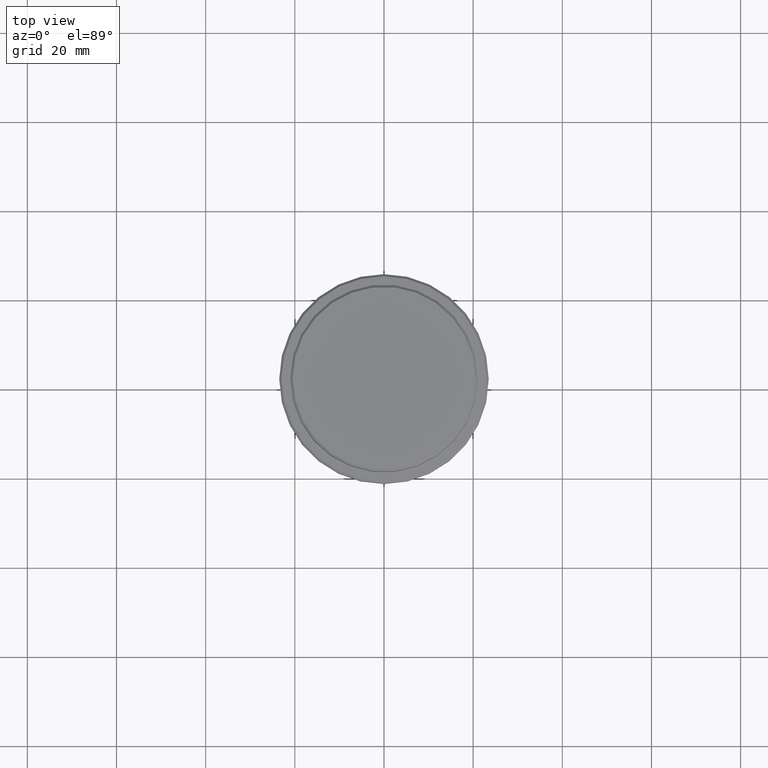
[diagram: clean part render]
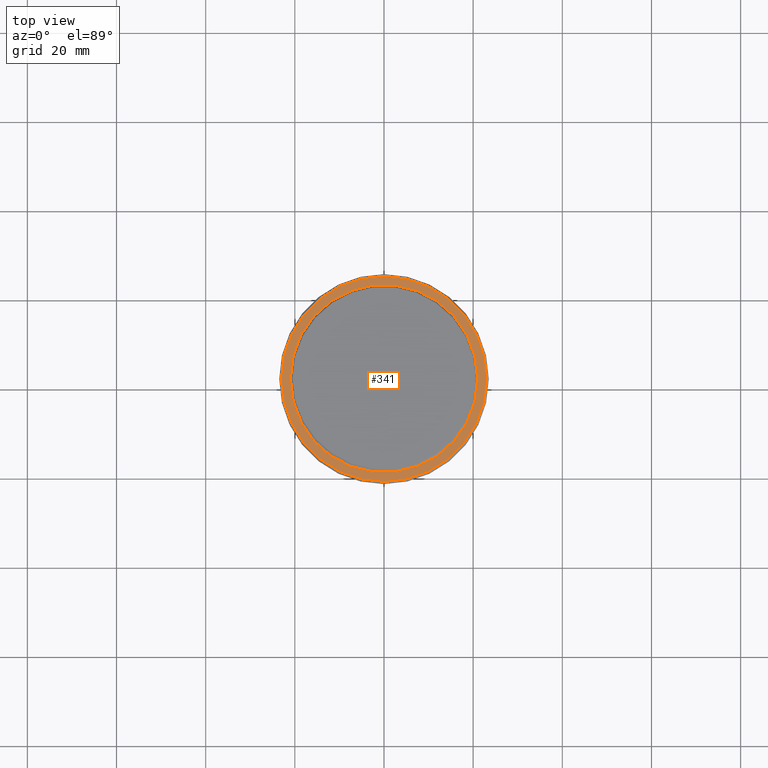
[diagram: same view with one face highlighted and labeled with its STEP entity id]
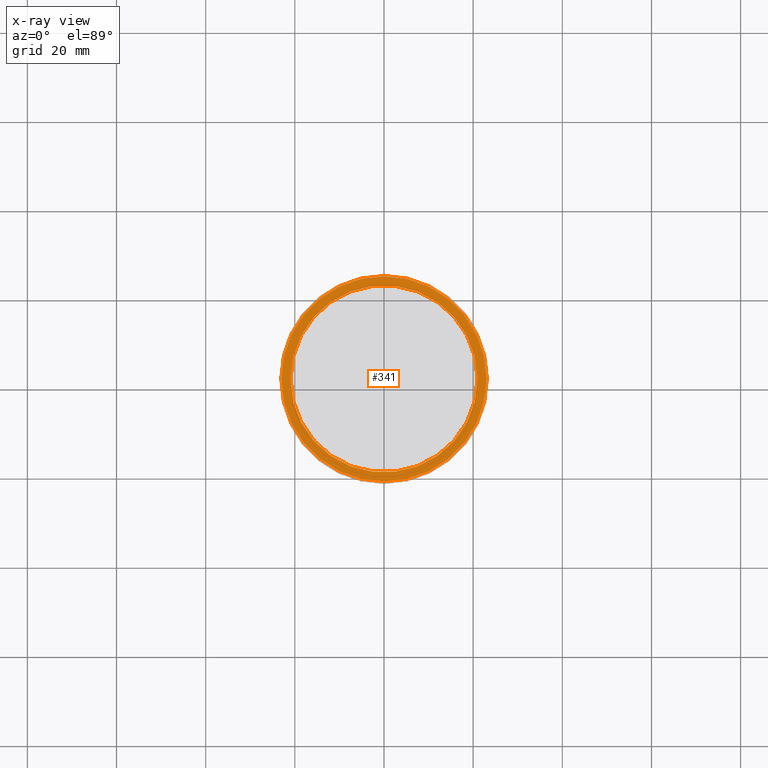
[diagram: x-ray of the same camera — body ghosted, the highlighted face saturated]
A machine part, top view. The second image highlights one B-rep face of the part: STEP entity #341.
The next image is the same camera in x-ray: the body ghosted, the highlighted face saturated — about 0% of this face is hidden behind the body in this view.
In plain terms, the highlighted planar face has unit normal (0, -0, 1).
Its self-contained STEP definition (entity closure, byte-faithful):
#20 = CIRCLE ( 'NONE', #89, 20.99999999999999289 ) ;
#74 = VERTEX_POINT ( 'NONE', #871 ) ;
#89 = AXIS2_PLACEMENT_3D ( 'NONE', #628, #1065, #1164 ) ;
#121 = VERTEX_POINT ( 'NONE', #425 ) ;
#128 = EDGE_LOOP ( 'NONE', ( #1134, #1357 ) ) ;
#247 = CARTESIAN_POINT ( 'NONE',  ( -20.99999999999999289, 2.571758278209440872E-15, -9.000000000000000000 ) ) ;
#269 = AXIS2_PLACEMENT_3D ( 'NONE', #895, #683, #279 ) ;
#274 = DIRECTION ( 'NONE',  ( 1.000000000000000000, 0.000000000000000000, 0.000000000000000000 ) ) ;
#279 = DIRECTION ( 'NONE',  ( 1.000000000000000000, 0.000000000000000000, 0.000000000000000000 ) ) ;
#341 = ADVANCED_FACE ( 'NONE', ( #685, #1118 ), #604, .T. ) ;
#425 = CARTESIAN_POINT ( 'NONE',  ( -23.00000000000003908, 0.000000000000000000, -9.000000000000000000 ) ) ;
#583 = DIRECTION ( 'NONE',  ( 0.000000000000000000, -0.000000000000000000, 1.000000000000000000 ) ) ;
#604 = PLANE ( 'NONE',  #1071 ) ;
#628 = CARTESIAN_POINT ( 'NONE',  ( 0.000000000000000000, 0.000000000000000000, -9.000000000000000000 ) ) ;
#683 = DIRECTION ( 'NONE',  ( 0.000000000000000000, 0.000000000000000000, -1.000000000000000000 ) ) ;
#685 = FACE_OUTER_BOUND ( 'NONE', #128, .T. ) ;
#714 = DIRECTION ( 'NONE',  ( -0.000000000000000000, -0.000000000000000000, 1.000000000000000000 ) ) ;
#718 = VERTEX_POINT ( 'NONE', #247 ) ;
#727 = CARTESIAN_POINT ( 'NONE',  ( 0.000000000000000000, 0.000000000000000000, -9.000000000000000000 ) ) ;
#805 = VERTEX_POINT ( 'NONE', #1037 ) ;
#857 = ORIENTED_EDGE ( 'NONE', *, *, #1190, .T. ) ;
#870 = CIRCLE ( 'NONE', #269, 20.99999999999999289 ) ;
#871 = CARTESIAN_POINT ( 'NONE',  ( 23.00000000000003908, 2.847303808017598505E-15, -9.000000000000000000 ) ) ;
#882 = EDGE_CURVE ( 'NONE', #718, #805, #20, .T. ) ;
#895 = CARTESIAN_POINT ( 'NONE',  ( 0.000000000000000000, 0.000000000000000000, -9.000000000000000000 ) ) ;
#912 = CIRCLE ( 'NONE', #1165, 23.00000000000003908 ) ;
#1027 = ORIENTED_EDGE ( 'NONE', *, *, #882, .T. ) ;
#1037 = CARTESIAN_POINT ( 'NONE',  ( 20.99999999999999289, 0.000000000000000000, -9.000000000000000000 ) ) ;
#1065 = DIRECTION ( 'NONE',  ( 0.000000000000000000, 0.000000000000000000, -1.000000000000000000 ) ) ;
#1071 = AXIS2_PLACEMENT_3D ( 'NONE', #1220, #583, #274 ) ;
#1102 = AXIS2_PLACEMENT_3D ( 'NONE', #727, #714, #1154 ) ;
#1106 = DIRECTION ( 'NONE',  ( 1.000000000000000000, 0.000000000000000000, 0.000000000000000000 ) ) ;
#1115 = CARTESIAN_POINT ( 'NONE',  ( 0.000000000000000000, 0.000000000000000000, -9.000000000000000000 ) ) ;
#1118 = FACE_BOUND ( 'NONE', #1303, .T. ) ;
#1127 = DIRECTION ( 'NONE',  ( -0.000000000000000000, -0.000000000000000000, 1.000000000000000000 ) ) ;
#1134 = ORIENTED_EDGE ( 'NONE', *, *, #1152, .T. ) ;
#1152 = EDGE_CURVE ( 'NONE', #121, #74, #912, .T. ) ;
#1154 = DIRECTION ( 'NONE',  ( 1.000000000000000000, 0.000000000000000000, 0.000000000000000000 ) ) ;
#1164 = DIRECTION ( 'NONE',  ( 1.000000000000000000, 0.000000000000000000, 0.000000000000000000 ) ) ;
#1165 = AXIS2_PLACEMENT_3D ( 'NONE', #1115, #1127, #1106 ) ;
#1190 = EDGE_CURVE ( 'NONE', #805, #718, #870, .T. ) ;
#1220 = CARTESIAN_POINT ( 'NONE',  ( 0.000000000000000000, 20.49999999999999645, -9.000000000000000000 ) ) ;
#1271 = CIRCLE ( 'NONE', #1102, 23.00000000000003908 ) ;
#1299 = EDGE_CURVE ( 'NONE', #74, #121, #1271, .T. ) ;
#1303 = EDGE_LOOP ( 'NONE', ( #857, #1027 ) ) ;
#1357 = ORIENTED_EDGE ( 'NONE', *, *, #1299, .T. ) ;